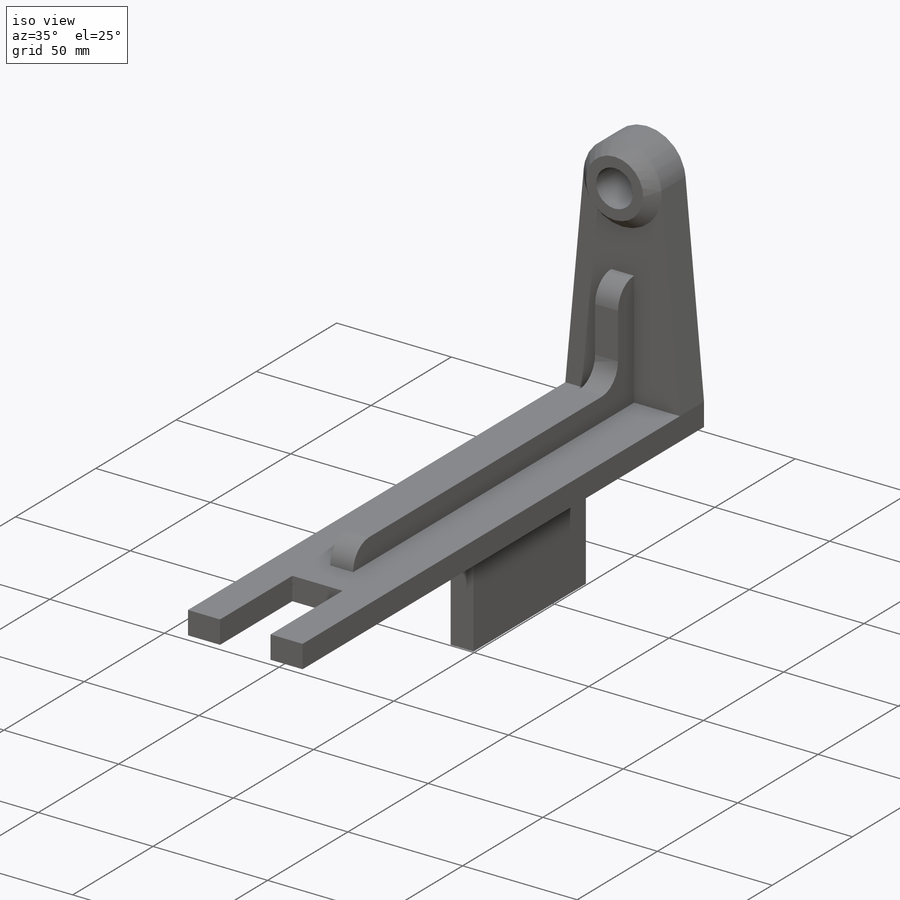
[diagram: iso view]
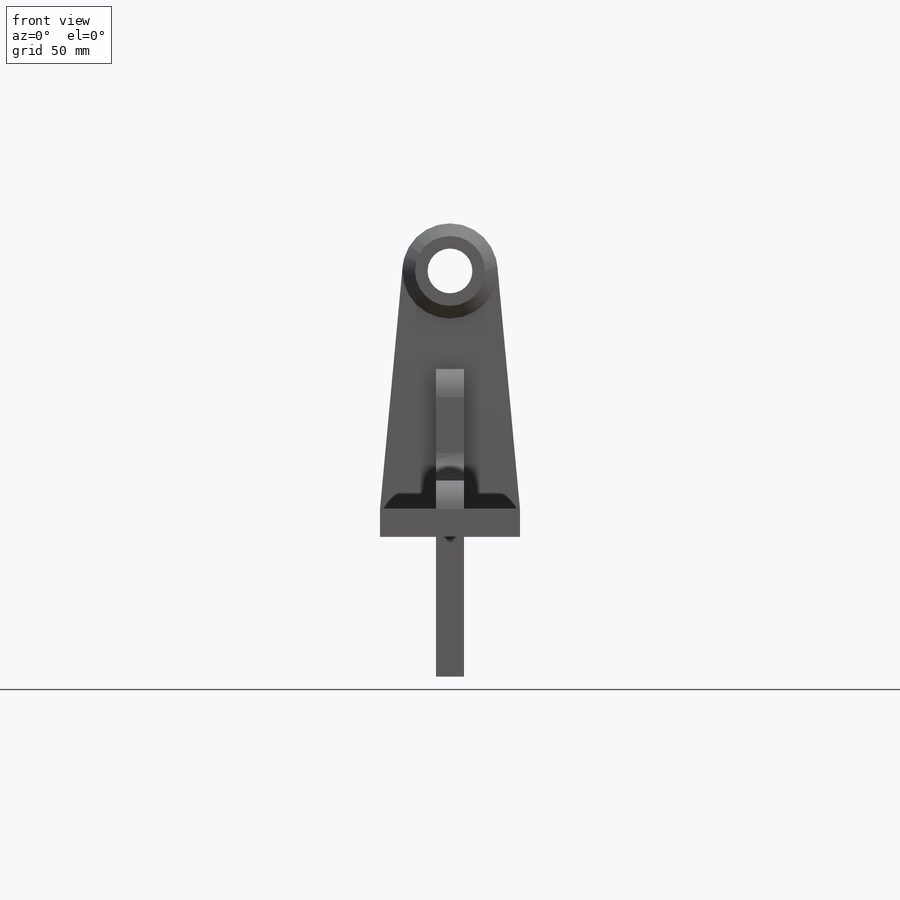
[diagram: front view]
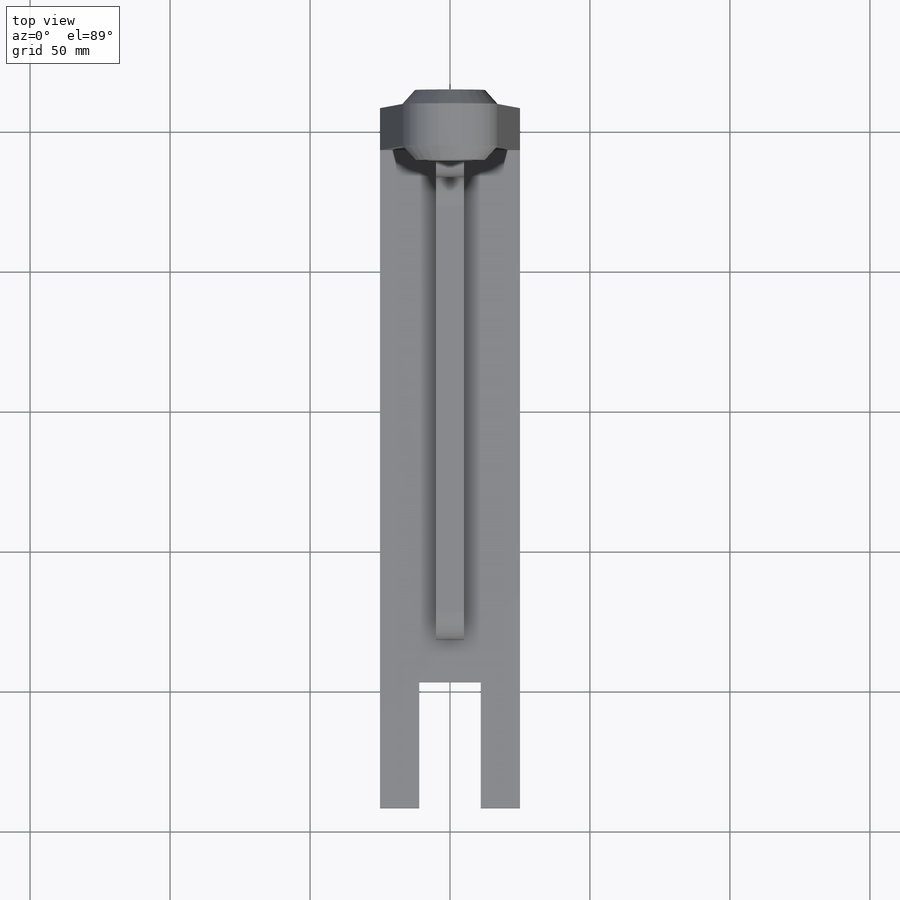
[diagram: top view]
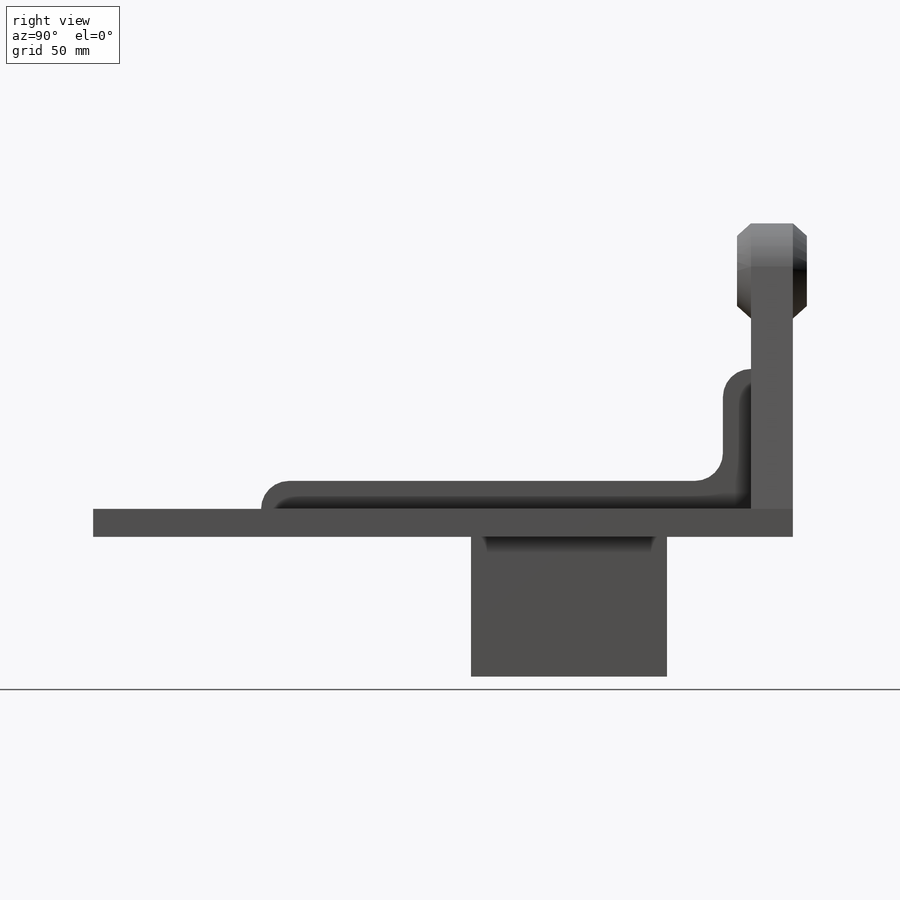
[diagram: right view]
SOLIDWORKS PART (.sldprt)
format: sldprt  version: not decoded by parser v0  size: 195,584 bytes
history: native  units: mm
features: sketch x6, extrude x3, cut_extrude x2, material x1, revolve x1 (+12 scaffold rows collapsed)
feature tree (25):
  scaffold x12  (default folders/planes/origin — collapsed)
  material  "Material <not specified>"
  sketch  "Sketch1"  dims[D1=34.0mm D2=95.0mm D3=50.0mm D4=10.0mm]
  extrude  "Boss-Extrude1"  Depth=15mm
  sketch  "Sketch2"
  extrude  "Boss-Extrude2"  Depth=235mm
  sketch  "Sketch3"  dims[D1=12.5mm D2=5.0mm D3=8.0mm]
  revolve  "Revolve1"  Angle=360deg
  sketch  "Sketch4"  dims[D1=10.0mm D2=10.0mm D3=10.0mm D4=50.0mm D5=10.0mm D6=175.0mm D7=70.0mm D8=45.0mm]
  extrude  "Boss-Extrude3"  Depth=10mm
  sketch  "Sketch5"  dims[D1=0.0mm]
  cut_extrude  "Cut-Extrude1"  [1 undecoded]
  sketch  "Sketch6"  dims[D1=90.0mm]
  cut_extrude  "Cut-Extrude2"  Depth=22mm
decode coverage: 10 of 12 modeling features carry decoded parameters
note: 1 parameter value undecoded
note: suppression state not decoded; provenance and decode notes live in map.json
